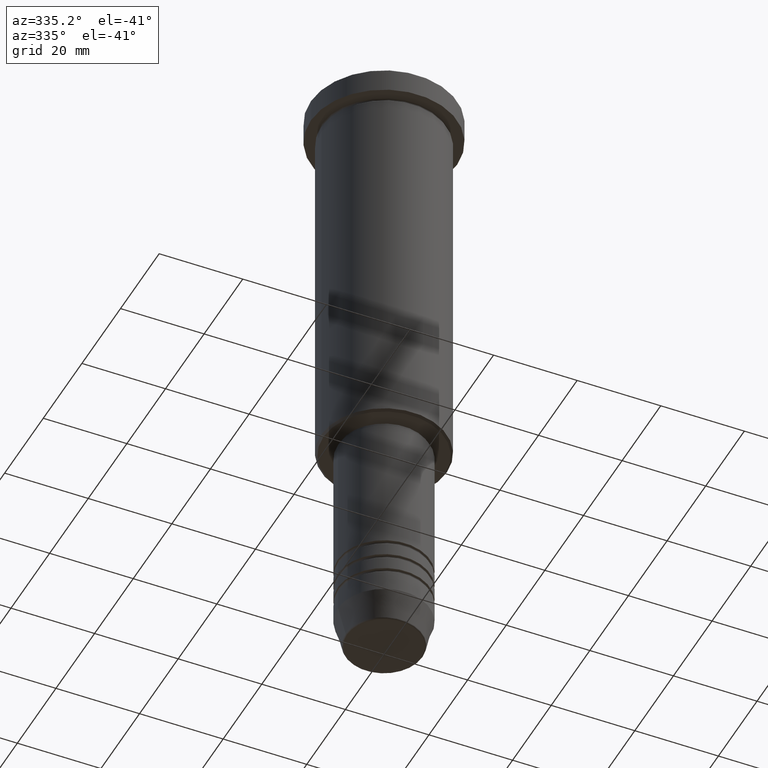
[diagram: clean part render]
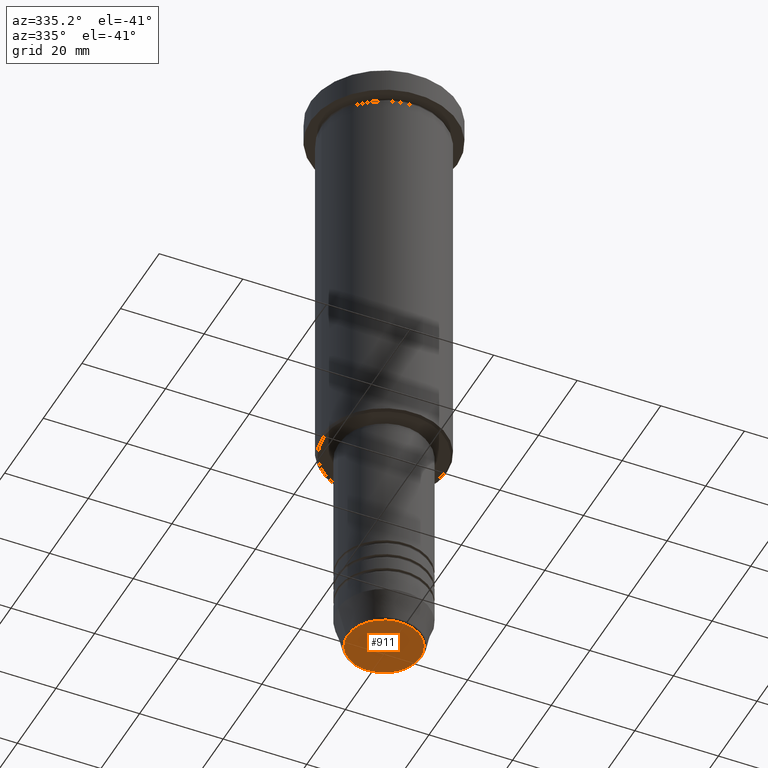
[diagram: same view with one face highlighted and labeled with its STEP entity id]
A machine part, auxiliary view. The second image highlights one B-rep face of the part: STEP entity #911.
In plain terms, the highlighted planar face has unit normal (0, -0, 1).
Its self-contained STEP definition (entity closure, byte-faithful):
#149 = CIRCLE ( 'NONE', #954, 8.740692158992656502 ) ;
#150 = AXIS2_PLACEMENT_3D ( 'NONE', #202, #945, #1104 ) ;
#202 = CARTESIAN_POINT ( 'NONE',  ( 0.000000000000000000, 0.000000000000000000, -151.0000000000000284 ) ) ;
#205 = DIRECTION ( 'NONE',  ( 0.000000000000000000, 0.000000000000000000, -1.000000000000000000 ) ) ;
#324 = EDGE_CURVE ( 'NONE', #1046, #1126, #149, .T. ) ;
#326 = ORIENTED_EDGE ( 'NONE', *, *, #582, .T. ) ;
#428 = ORIENTED_EDGE ( 'NONE', *, *, #324, .T. ) ;
#539 = CARTESIAN_POINT ( 'NONE',  ( -8.740692158992656502, 1.099999016768739653E-15, -151.0000000000000284 ) ) ;
#582 = EDGE_CURVE ( 'NONE', #1126, #1046, #1081, .T. ) ;
#633 = CARTESIAN_POINT ( 'NONE',  ( 0.000000000000000000, 0.000000000000000000, -151.0000000000000284 ) ) ;
#670 = AXIS2_PLACEMENT_3D ( 'NONE', #633, #908, #1004 ) ;
#697 = EDGE_LOOP ( 'NONE', ( #428, #326 ) ) ;
#739 = DIRECTION ( 'NONE',  ( 1.000000000000000000, 0.000000000000000000, 0.000000000000000000 ) ) ;
#809 = FACE_OUTER_BOUND ( 'NONE', #697, .T. ) ;
#908 = DIRECTION ( 'NONE',  ( 0.000000000000000000, -0.000000000000000000, 1.000000000000000000 ) ) ;
#911 = ADVANCED_FACE ( 'NONE', ( #809 ), #1162, .F. ) ;
#945 = DIRECTION ( 'NONE',  ( 0.000000000000000000, 0.000000000000000000, -1.000000000000000000 ) ) ;
#954 = AXIS2_PLACEMENT_3D ( 'NONE', #1097, #205, #739 ) ;
#1004 = DIRECTION ( 'NONE',  ( 1.000000000000000000, 0.000000000000000000, 0.000000000000000000 ) ) ;
#1046 = VERTEX_POINT ( 'NONE', #1149 ) ;
#1081 = CIRCLE ( 'NONE', #150, 8.740692158992656502 ) ;
#1097 = CARTESIAN_POINT ( 'NONE',  ( 0.000000000000000000, 0.000000000000000000, -151.0000000000000284 ) ) ;
#1104 = DIRECTION ( 'NONE',  ( 1.000000000000000000, 0.000000000000000000, 0.000000000000000000 ) ) ;
#1126 = VERTEX_POINT ( 'NONE', #539 ) ;
#1149 = CARTESIAN_POINT ( 'NONE',  ( 8.740692158992656502, 0.000000000000000000, -151.0000000000000284 ) ) ;
#1162 = PLANE ( 'NONE',  #670 ) ;